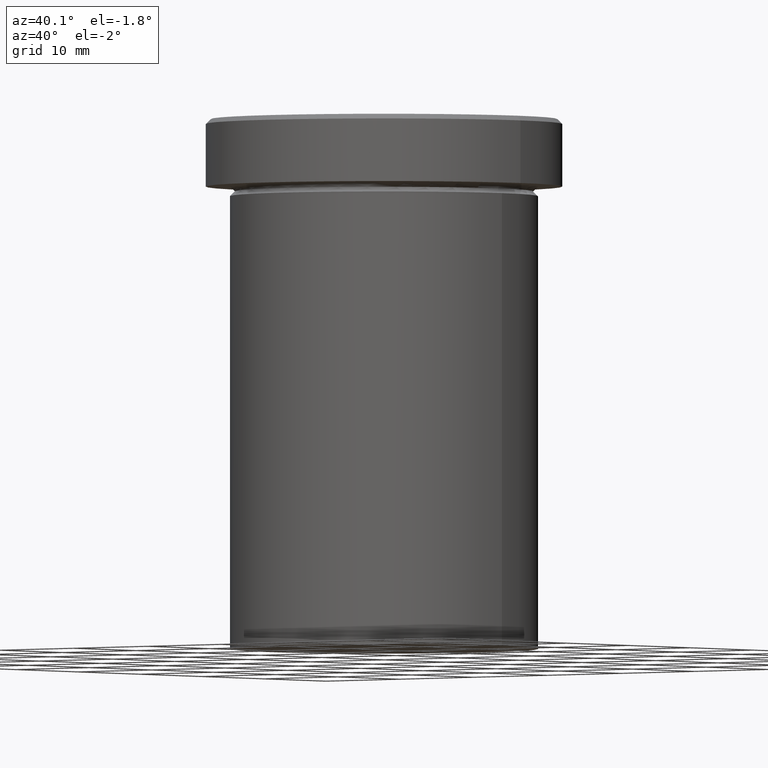
[diagram: clean part render]
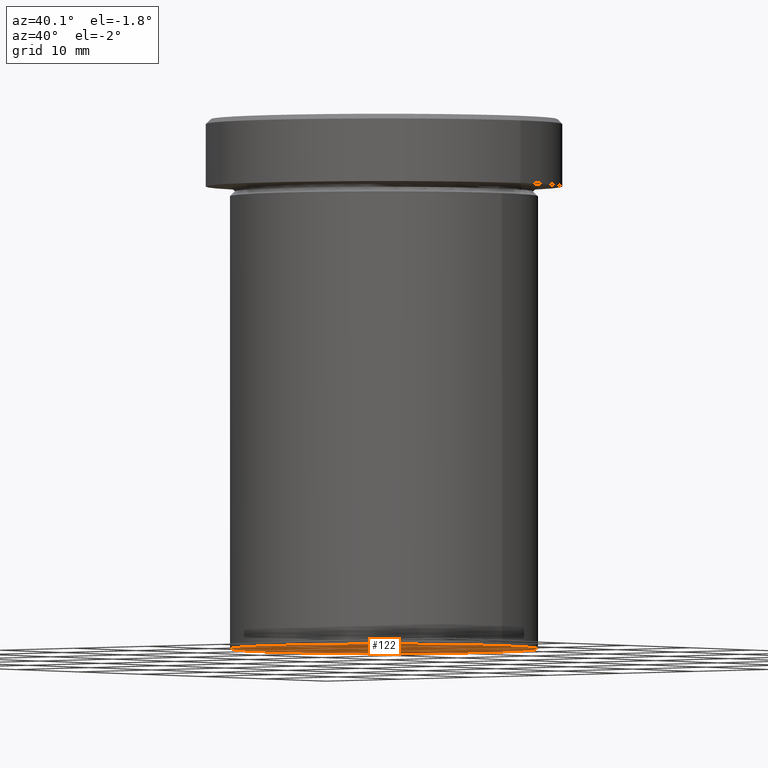
[diagram: same view with one face highlighted and labeled with its STEP entity id]
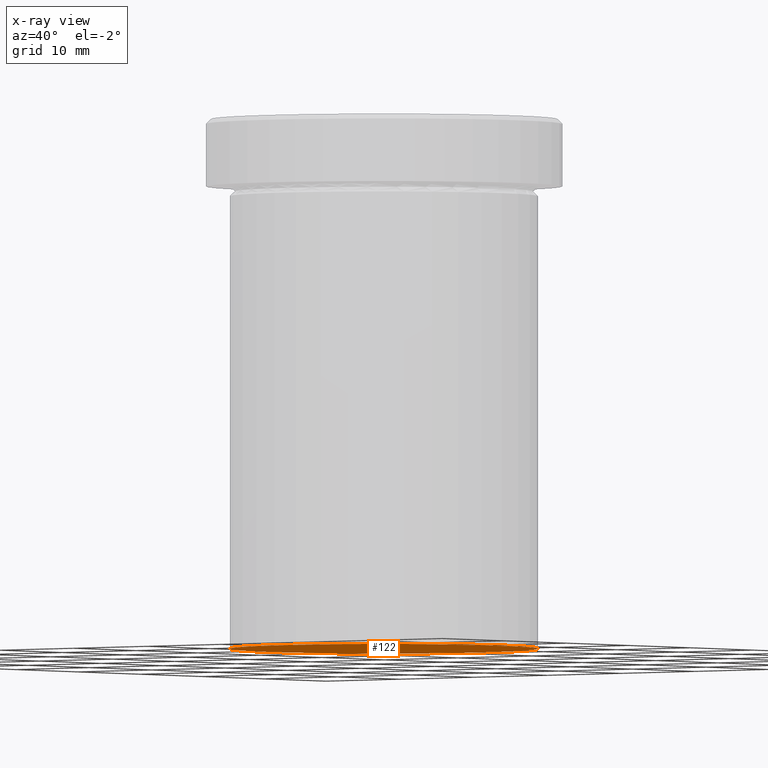
[diagram: x-ray of the same camera — body ghosted, the highlighted face saturated]
A machine part, auxiliary view. The second image highlights one B-rep face of the part: STEP entity #122.
The next image is the same camera in x-ray: the body ghosted, the highlighted face saturated — about 0% of this face is hidden behind the body in this view.
In plain terms, the highlighted planar face has unit normal (0, 0, -1).
Its self-contained STEP definition (entity closure, byte-faithful):
#30 = DIRECTION ( 'NONE',  ( -1.000000000000000000, 0.000000000000000000, -0.000000000000000000 ) ) ;
#36 = EDGE_LOOP ( 'NONE', ( #325, #274 ) ) ;
#46 = VERTEX_POINT ( 'NONE', #357 ) ;
#61 = PLANE ( 'NONE',  #394 ) ;
#64 = CARTESIAN_POINT ( 'NONE',  ( 0.000000000000000000, 0.000000000000000000, -54.99999999999999289 ) ) ;
#89 = EDGE_CURVE ( 'NONE', #155, #46, #317, .T. ) ;
#90 = FACE_OUTER_BOUND ( 'NONE', #36, .T. ) ;
#92 = DIRECTION ( 'NONE',  ( -0.000000000000000000, -0.000000000000000000, 1.000000000000000000 ) ) ;
#93 = CARTESIAN_POINT ( 'NONE',  ( 0.000000000000000000, 16.00000000000000000, -54.99999999999999289 ) ) ;
#113 = EDGE_CURVE ( 'NONE', #46, #155, #191, .T. ) ;
#122 = ADVANCED_FACE ( 'NONE', ( #90 ), #61, .T. ) ;
#123 = DIRECTION ( 'NONE',  ( -0.000000000000000000, -0.000000000000000000, 1.000000000000000000 ) ) ;
#126 = DIRECTION ( 'NONE',  ( 1.000000000000000000, 0.000000000000000000, 0.000000000000000000 ) ) ;
#141 = AXIS2_PLACEMENT_3D ( 'NONE', #64, #123, #126 ) ;
#155 = VERTEX_POINT ( 'NONE', #251 ) ;
#191 = CIRCLE ( 'NONE', #300, 16.00000000000000000 ) ;
#212 = DIRECTION ( 'NONE',  ( 0.000000000000000000, 0.000000000000000000, -1.000000000000000000 ) ) ;
#216 = DIRECTION ( 'NONE',  ( 1.000000000000000000, 0.000000000000000000, 0.000000000000000000 ) ) ;
#251 = CARTESIAN_POINT ( 'NONE',  ( -16.00000000000000000, 1.959434878635765131E-15, -54.99999999999999289 ) ) ;
#274 = ORIENTED_EDGE ( 'NONE', *, *, #89, .F. ) ;
#300 = AXIS2_PLACEMENT_3D ( 'NONE', #316, #92, #216 ) ;
#316 = CARTESIAN_POINT ( 'NONE',  ( 0.000000000000000000, 0.000000000000000000, -54.99999999999999289 ) ) ;
#317 = CIRCLE ( 'NONE', #141, 16.00000000000000000 ) ;
#325 = ORIENTED_EDGE ( 'NONE', *, *, #113, .F. ) ;
#357 = CARTESIAN_POINT ( 'NONE',  ( 16.00000000000000000, 0.000000000000000000, -54.99999999999999289 ) ) ;
#394 = AXIS2_PLACEMENT_3D ( 'NONE', #93, #212, #30 ) ;